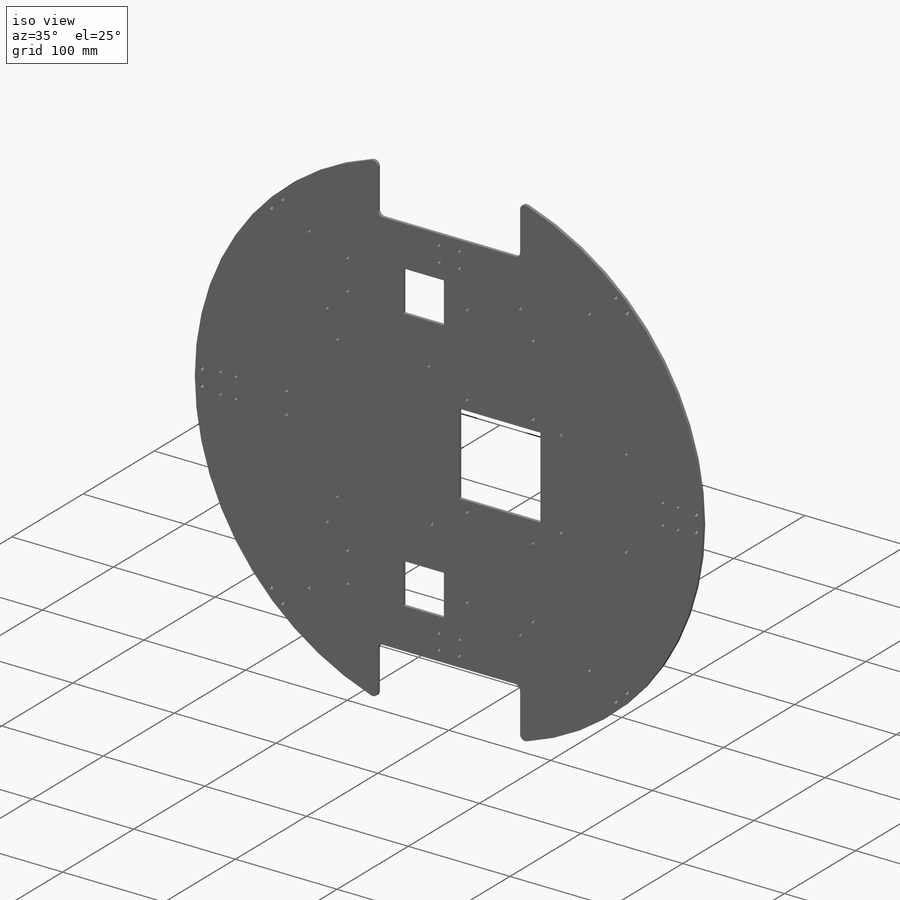
[diagram: iso view]
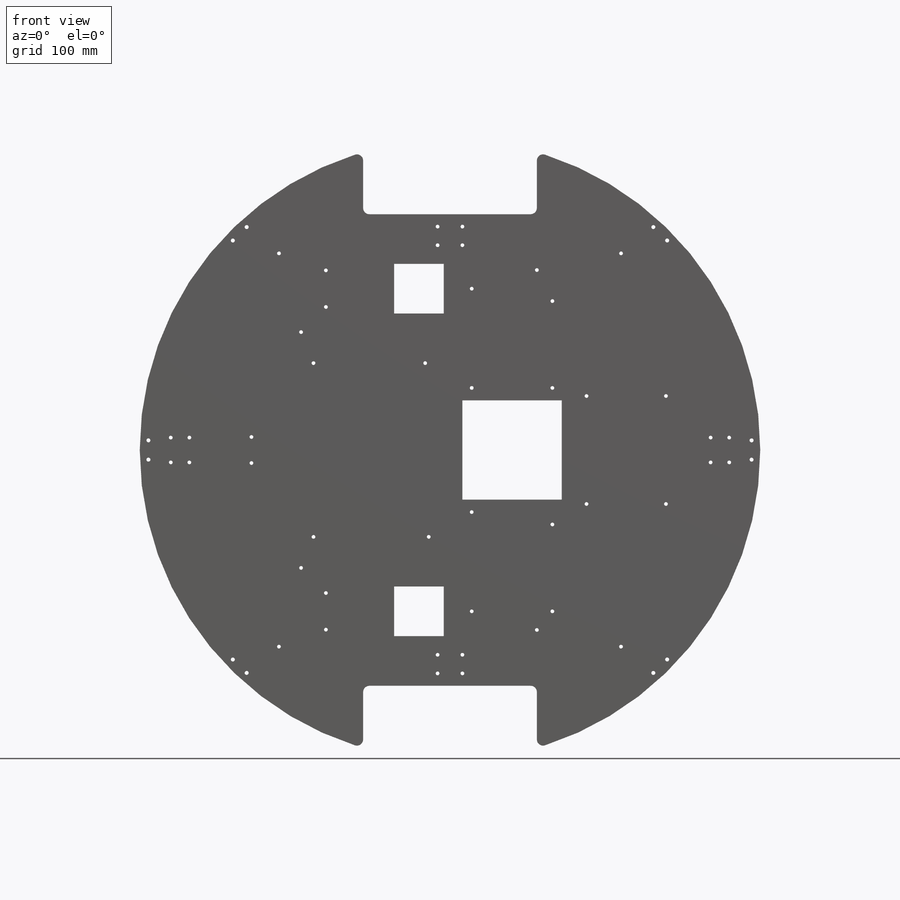
[diagram: front view]
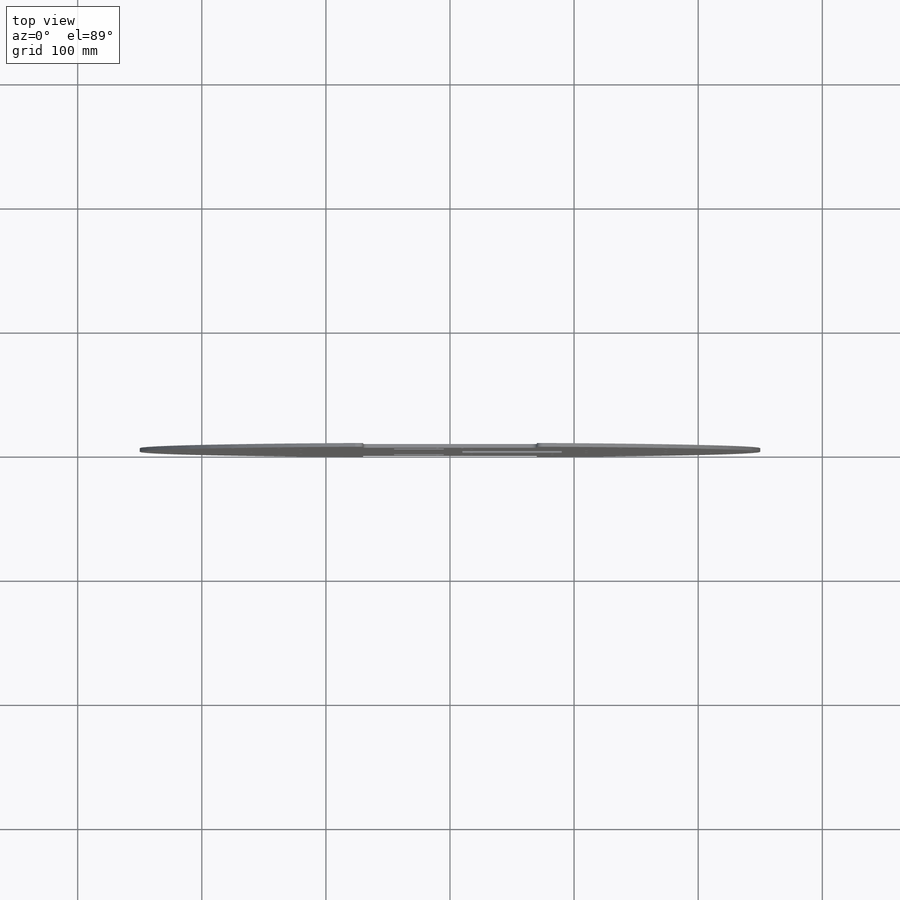
[diagram: top view]
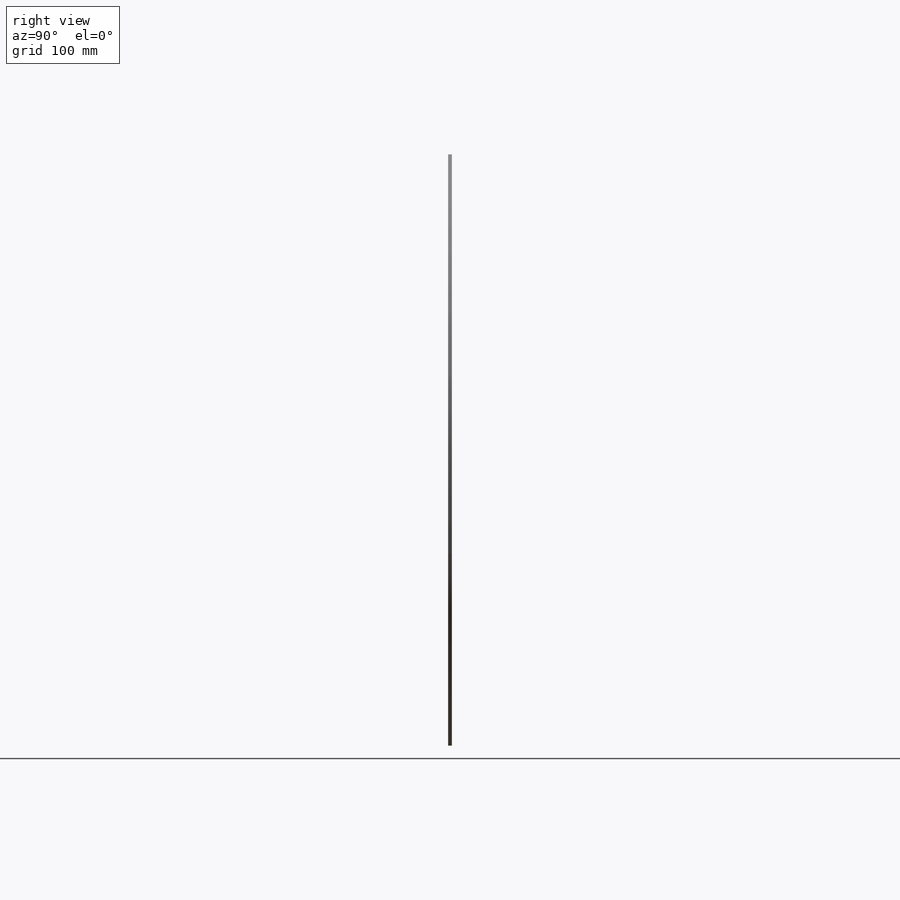
[diagram: right view]
SOLIDWORKS PART (.sldprt)
format: sldprt  version: not decoded by parser v0  size: 761,344 bytes
history: native  units: mm
features: sketch x16, cut_extrude x15, fillet x8, plane x3, material x1, extrude x1 + 2 further entries (+8 scaffold rows collapsed)
feature tree (54):
  scaffold x8  (default folders/planes/origin — collapsed)
  material  "ｱｸﾘﾙ (中-上級の耐衝撃性)"
  "ｻｰﾌｪｽ ﾎﾞﾃﾞｨ"
  "ｿﾘｯﾄﾞ ﾎﾞﾃﾞｨ"
  plane  "正面"
  plane  "平面"
  plane  "右側面"
  sketch  "ｽｹｯﾁ1"  dims[D1=500.0mm]
  extrude  "ﾎﾞｽ - 押し出し1"  Depth=3mm
  sketch  "ｽｹｯﾁ2"  dims[c1.D1=190.0mm c1.D2=70.0mm c1.D3=70.0mm c2.D1=140.0mm c2.D2=60.0mm c2.D3=70.0mm c2.D4=190.0mm]
  cut_extrude  "ｶｯﾄ - 押し出し1"  [1 undecoded]
  sketch  "ｽｹｯﾁ3"  dims[c1.D1=190.0mm c1.D2=70.0mm c1.D3=70.0mm c1.D4=60.0mm c2.D2=140.0mm]
  cut_extrude  "ｶｯﾄ - 押し出し2"  [1 undecoded]
  fillet  "ﾌｨﾚｯﾄ1"  Radius=5mm
  fillet  "ﾌｨﾚｯﾄ2"  Radius=5mm
  fillet  "ﾌｨﾚｯﾄ3"  Radius=5mm
  fillet  "ﾌｨﾚｯﾄ4"  Radius=5mm
  fillet  "ﾌｨﾚｯﾄ5"  Radius=5mm
  fillet  "ﾌｨﾚｯﾄ6"  Radius=5mm
  fillet  "ﾌｨﾚｯﾄ7"  Radius=5mm
  fillet  "ﾌｨﾚｯﾄ8"  Radius=5mm
  sketch  "ｽｹｯﾁ18"  dims[c1.D1=3.0mm c1.D2=3.0mm c1.D4=3.0mm c1.D5=3.0mm c1.D6=~15.054301mm c1.D7=3.0mm c1.D8=3.0mm c1.D9=3.0mm c1.D10=3.0mm c1.D12=3.0mm c1.D3=3.0mm c2.D6=3.0mm c2.D15=3.0mm c2.D3=3.0mm c2.D4=3.0mm c2.D5=3.0mm c3.D3=14.75mm c3.D4=14.75mm c3.D6=14.75mm c3.D8=14.75mm c3.D9=180.0mm c3.D10=180.0mm c3.D11=180.0mm c3.D12=180.0mm c4.D3=14.75mm c4.D4=14.75mm c4.D6=14.75mm c4.D8=14.75mm c4.D9=130.0mm c4.D10=130.0mm c4.D11=100.0mm c4.D12=100.0mm c4.D13=100.0mm c4.D14=100.0mm c4.D15=230.5mm c4.D2=29.5mm c5.D3=29.5mm c5.D4=100.0mm c5.D5=14.75mm c5.D6=14.75mm]
  cut_extrude  "ｶｯﾄ - 押し出し10"  [1 undecoded]
  sketch  "ｽｹｯﾁ19"  dims[c1.D1=~7.575467mm c1.D2=3.0mm c1.D3=3.0mm c1.D4=3.0mm c1.D5=3.0mm c1.D6=3.0mm c1.D7=3.0mm c2.D2=3.0mm c2.D1=10.5mm c2.D3=10.5mm c2.D5=195.0mm c2.D6=195.0mm c3.D1=10.5mm c3.D3=10.5mm c3.D5=160.0mm c3.D6=160.0mm c3.D7=100.0mm c4.D1=21.0mm c4.D2=10.5mm]
  cut_extrude  "ｶｯﾄ - 押し出し11"  Depth=3mm
  sketch  "ｽｹｯﾁ20"  dims[c1.D1=3.2mm c1.D2=3.2mm c1.D3=3.2mm c1.D4=3.2mm c1.D5=3.2mm c1.D6=3.2mm c1.D7=3.2mm c1.D8=3.2mm c1.D10=3.2mm c1.D11=3.2mm c1.D12=3.2mm c1.D13=~8.891169mm c1.D14=~7.16829mm c1.D15=3.2mm c1.D16=3.2mm c1.D17=3.2mm c1.D18=3.2mm c2.D3=3.2mm c2.D4=3.2mm c2.D7=3.2mm c2.D6=3.2mm c3.D7=3.2mm c3.D8=3.2mm c3.D9=3.2mm c3.D10=3.2mm c3.D11=3.2mm c3.D13=3.2mm c3.D14=3.2mm c3.D3=7.75mm c3.D4=7.75mm c4.D7=7.75mm c4.D8=7.75mm c4.D9=14.0mm c4.D10=14.0mm c4.D11=14.0mm c4.D12=14.0mm c4.D13=14.0mm c4.D14=14.0mm c4.D17=7.75mm c4.D18=7.75mm c4.D3=15.5mm c4.D4=15.5mm c5.D7=15.5mm c5.D4=250.0mm c6.D4=45.8deg c6.D5=250.0mm c7.D5=45.8deg c7.D6=7.0mm c7.D9=7.0mm c7.D10=7.75mm c7.D11=15.5mm c7.D12=7.75mm c7.D13=7.75mm c7.D14=15.5mm]
  cut_extrude  "ｶｯﾄ - 押し出し12"  [1 undecoded]
  sketch  "ｽｹｯﾁ21"  dims[c1.D5=~17.06046mm c1.D6=~23.228593mm c1.D7=~34.290441mm c1.D8=~23.625534mm c1.D9=3.0mm c1.D10=3.0mm c1.D11=3.0mm c1.D12=3.0mm c1.D13=~37.284681mm c1.D14=~32.264144mm c1.D15=~29.187422mm c1.D16=~35.400878mm c2.D14=~32.264144mm c2.D17=3.0mm c2.D18=3.0mm c2.D19=3.0mm c2.D20=3.0mm c2.D1=3.0mm c2.D2=3.0mm c3.D1=180.0mm c4.D1=48.99deg c4.D2=180.0mm c5.D2=48.99deg c5.D3=250.0mm c6.D3=48.99deg c6.D4=~133.157008mm c7.D4=48.99deg c7.D5=210.0mm c7.D6=210.0mm c7.D7=210.0mm c7.D8=210.0mm c7.D13=110.0mm c7.D14=~139.302216mm c7.D15=110.0mm c7.D16=110.0mm c8.D14=110.0mm c8.D21=250.0mm c9.D21=48.99deg c9.D22=250.0mm c10.D22=48.99deg c10.D3=~270.755555mm c11.D3=48.99deg c11.D4=250.0mm c12.D4=48.99deg c12.D2=210.0mm c12.D5=210.0mm c12.D6=250.0mm c13.D6=48.99deg c13.D9=250.0mm c14.D9=48.99deg]
  sketch  "ｽｹｯﾁ24"  dims[c1.D1=~8.093639mm c1.D3=~11.849829mm c1.D4=~11.849829mm c1.D5=3.0mm c1.D6=3.0mm c1.D7=3.0mm c1.D8=3.0mm c1.D11=3.0mm c1.D12=3.0mm c1.D2=3.0mm c2.D3=3.0mm c2.D2=3.0mm c3.D3=3.0mm c3.D4=3.0mm c3.D11=3.0mm c3.D2=3.0mm c3.D1=15.0mm c4.D2=8.0mm c4.D3=16.5mm c4.D4=8.0mm c4.D9=25.0mm c4.D10=25.0mm c4.D11=16.0mm c4.D12=15.0mm c5.D2=8.0mm c5.D3=8.0mm c6.D2=10.0mm c6.D3=10.0mm c6.D4=10.0mm c6.D11=10.0mm c7.D2=20.0mm]
  cut_extrude  "ｶｯﾄ - 押し出し14"  [1 undecoded]
  sketch  "ｽｹｯﾁ25"  dims[c1.D3=~6.060348mm c1.D4=~6.060348mm c1.D5=~7.969489mm c1.D7=~7.388128mm c1.D8=~4.249651mm c1.D9=3.0mm c1.D10=3.0mm c1.D11=3.0mm c1.D12=3.0mm c1.D13=3.0mm c1.D2=3.0mm c2.D3=3.0mm c2.D1=3.0mm c3.D3=3.0mm c3.D1=16.0mm c3.D2=8.0mm c4.D3=8.0mm c4.D4=16.0mm c4.D5=15.0mm c4.D6=25.0mm c4.D7=25.0mm c4.D8=15.0mm c4.D13=18.0mm c4.D2=10.0mm c5.D3=10.0mm c5.D1=10.0mm c5.D2=20.0mm c6.D3=15.0mm]
  cut_extrude  "ｶｯﾄ - 押し出し15"  [1 undecoded]
  cut_extrude  "ｶｯﾄ - 押し出し16"  [1 undecoded]
  sketch  "ｽｹｯﾁ26"  dims[c1.D3=~5.473099mm c1.D5=~6.933698mm c1.D6=~5.473099mm c1.D7=3.2mm c1.D8=3.2mm c1.D9=~4.770182mm c1.D10=~4.678198mm c1.D11=~4.770182mm c1.D12=~4.678198mm c1.D13=3.2mm c1.D14=3.2mm c1.D15=~7.049795mm c1.D16=~7.271174mm c1.D17=~7.049795mm c1.D18=~7.271174mm c1.D19=3.2mm c1.D20=3.2mm c2.D3=3.2mm c2.D4=3.2mm c2.D5=3.2mm c2.D6=3.2mm c2.D9=3.2mm c2.D11=3.2mm c2.D12=3.2mm c2.D16=3.2mm c2.D17=3.2mm c2.D18=3.2mm c2.D21=3.2mm c2.D1=250.0mm c3.D1=45.8deg c3.D2=250.0mm c4.D2=45.8deg c4.D3=7.0mm c4.D4=7.0mm c4.D5=7.75mm c4.D6=7.75mm c4.D9=7.75mm c4.D10=7.75mm c4.D11=7.0mm c4.D12=7.0mm c4.D15=7.0mm c4.D16=7.0mm c4.D17=7.75mm c4.D18=7.75mm c5.D3=15.5mm c5.D4=7.75mm c5.D5=7.75mm c5.D6=15.5mm c5.D9=7.0mm c5.D10=7.0mm c5.D11=7.0mm c5.D12=7.0mm c5.D15=~174.291276mm c6.D15=90.0deg c6.D16=7.75mm c6.D17=15.5mm c6.D18=7.0mm c6.D21=7.0mm]
  cut_extrude  "ｶｯﾄ - 押し出し17"  [1 undecoded]
  sketch  "ｽｹｯﾁ27"  dims[c1.D1=~10.21372mm c1.D2=~9.456632mm c1.D3=~10.21372mm c1.D4=~8.250921mm c1.D5=~8.250921mm c1.D6=~10.21372mm c1.D7=3.0mm c1.D8=3.0mm c1.D9=3.0mm c1.D10=3.0mm c1.D11=3.0mm c1.D12=3.0mm c1.D13=~8.638927mm c1.D14=~9.278164mm c1.D15=9.8948mm c1.D16=~6.078328mm c1.D17=~6.078328mm c1.D18=~9.278164mm c1.D19=~9.278164mm c1.D20=~8.638927mm c1.D21=3.0mm c1.D22=3.0mm c1.D23=3.0mm c1.D24=3.0mm c2.D3=3.0mm c2.D4=3.0mm c2.D25=3.0mm c2.D26=3.0mm c3.D3=3.0mm c3.D13=3.0mm c3.D15=3.0mm c3.D1=8.0mm c3.D2=8.0mm c4.D3=8.0mm c4.D4=8.0mm c4.D5=15.0mm c4.D6=15.0mm c4.D11=10.0mm c4.D12=10.0mm c4.D13=8.0mm c4.D14=8.0mm c4.D15=8.0mm c4.D16=8.0mm c4.D17=15.0mm c4.D18=15.0mm c4.D19=10.0mm c4.D20=10.0mm c5.D3=8.0mm c5.D4=8.0mm c5.D25=8.0mm c5.D26=8.0mm c6.D3=10.0mm c6.D4=10.0mm c6.D13=10.0mm c6.D14=10.0mm c6.D15=10.0mm]
  cut_extrude  "ｶｯﾄ - 押し出し18"  [1 undecoded]
  sketch  "ｽｹｯﾁ28"  dims[c1.D1=~15.288172mm c1.D2=~22.383713mm c1.D3=~26.234927mm c1.D4=3.0mm c1.D5=~18.498614mm c1.D10=~22.383713mm c1.D11=~14.772691mm c1.D12=~18.498614mm c1.D13=~26.234927mm c1.D15=~26.234927mm c1.D16=~19.418143mm c1.D17=~15.909052mm c1.D18=3.0mm c1.D19=3.0mm c1.D20=3.0mm c1.D21=3.0mm c1.D22=3.0mm c1.D23=3.0mm c1.D24=3.0mm c2.D1=50.0mm c2.D2=50.0mm c2.D3=60.0mm c2.D5=50.0mm c2.D6=32.5mm c2.D7=32.5mm c2.D8=32.5mm c2.D9=32.5mm c2.D10=70.0mm c2.D11=80.0mm c2.D12=80.0mm c2.D13=32.5mm c2.D14=32.5mm c2.D15=70.0mm c2.D16=32.5mm c2.D17=32.5mm c2.D25=40.0mm c2.D26=40.0mm c2.D27=40.0mm c2.D28=40.0mm c2.D29=50.0mm c3.D25=90.0mm c3.D4=80.0mm c4.D4=90.0deg c5.D4=80.0mm c5.D6=40.0mm c5.D7=80.0mm c6.D6=65.0mm]
  cut_extrude  "ｶｯﾄ - 押し出し19"  [1 undecoded]
  sketch  "ｽｹｯﾁ29"  dims[c1.D1=40.0mm c1.D2=40.0mm c1.D3=40.0mm c1.D4=40.0mm c1.D5=40.0mm c1.D6=40.0mm c1.D7=50.0mm c1.D8=50.0mm c2.D7=25.0mm]
  cut_extrude  "ｶｯﾄ - 押し出し20"  [1 undecoded]
  sketch  "ｽｹｯﾁ30"  dims[c1.D1=~15.31195mm c1.D2=~13.741615mm c1.D3=~21.741978mm c1.D4=~17.512668mm c1.D5=~15.31195mm c1.D6=~13.741615mm c1.D7=3.0mm c1.D8=3.0mm c1.D9=3.0mm c1.D10=3.0mm c2.D2=3.0mm c2.D1=60.0mm c3.D2=60.0mm c3.D3=64.0mm c3.D4=64.0mm c3.D5=43.5mm c3.D6=43.5mm c4.D2=110.0mm c4.D11=110.0mm c4.D1=87.0mm]
  cut_extrude  "ｶｯﾄ - 押し出し21"  [1 undecoded]
  sketch  "ｽｹｯﾁ31"  dims[c1.D1=~17.32741mm c1.D2=~23.103214mm c1.D3=~18.626407mm c1.D4=~22.754027mm c1.D5=~23.103214mm c1.D6=~17.32741mm c1.D7=~17.32741mm c1.D8=~23.103214mm c1.D9=3.0mm c1.D10=3.0mm c1.D11=3.0mm c1.D12=3.0mm c2.D3=3.0mm c2.D1=70.0mm c2.D2=70.0mm c3.D3=70.0mm c3.D4=70.0mm c3.D5=40.0mm c3.D6=40.0mm c3.D7=90.0mm c3.D8=90.0mm c3.D13=~17.141016mm c3.D1=140.0mm c3.D2=20.0mm c4.D3=30.0mm]
  cut_extrude  "ｶｯﾄ - 押し出し22"  [1 undecoded]
  sketch  "ｽｹｯﾁ32"  dims[c1.D1=~18.737956mm c1.D2=~15.03205mm c1.D4=~15.03205mm c1.D5=~24.150403mm c1.D6=~19.775969mm c1.D7=3.0mm c1.D8=3.0mm c1.D9=3.0mm c1.D10=3.0mm c2.D5=3.0mm c2.D6=3.0mm c2.D11=3.0mm c2.D13=3.0mm c2.D2=3.0mm c2.D1=95.0mm c3.D2=95.0mm c3.D3=120.0mm c3.D4=120.0mm c3.D5=145.0mm c3.D6=145.0mm c3.D11=70.0mm c3.D12=70.0mm c3.D13=70.0mm c3.D14=70.0mm c4.D5=70.0mm c4.D6=70.0mm c4.D11=145.0mm c4.D13=145.0mm c4.D2=95.0mm c4.D4=120.0mm c5.D6=70.0mm c5.D7=145.0mm]
  cut_extrude  "ｶｯﾄ - 押し出し23"  [1 undecoded]
decode coverage: 26 of 40 modeling features carry decoded parameters; 2 rows unclassified (native names shown)
note: ~ marks probable driven/reference dimensions
note: 14 parameter values undecoded
summary: no parameter record found for 14 features
note: suppression state not decoded; provenance and decode notes live in map.json
